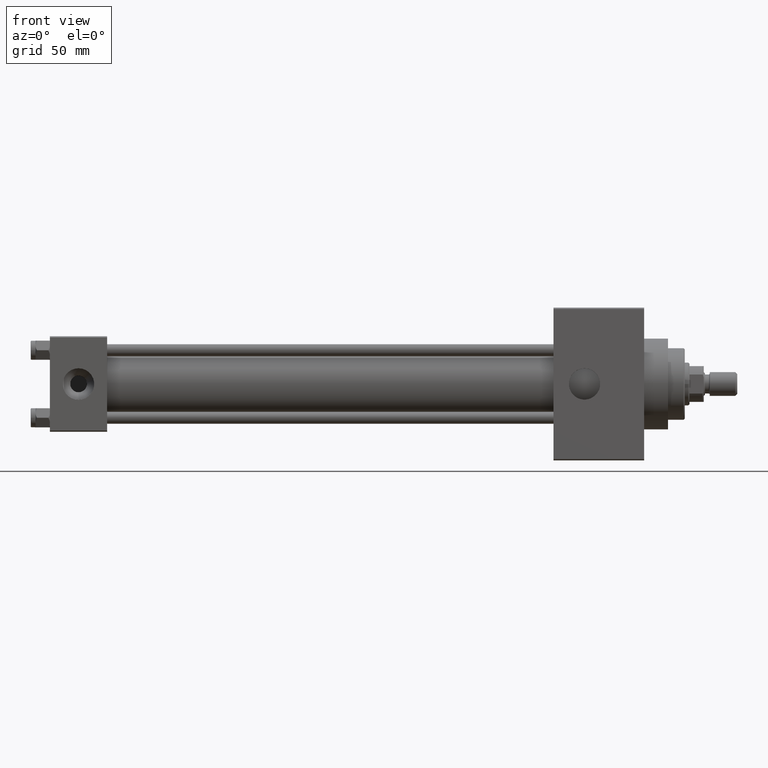
[diagram: clean part render]
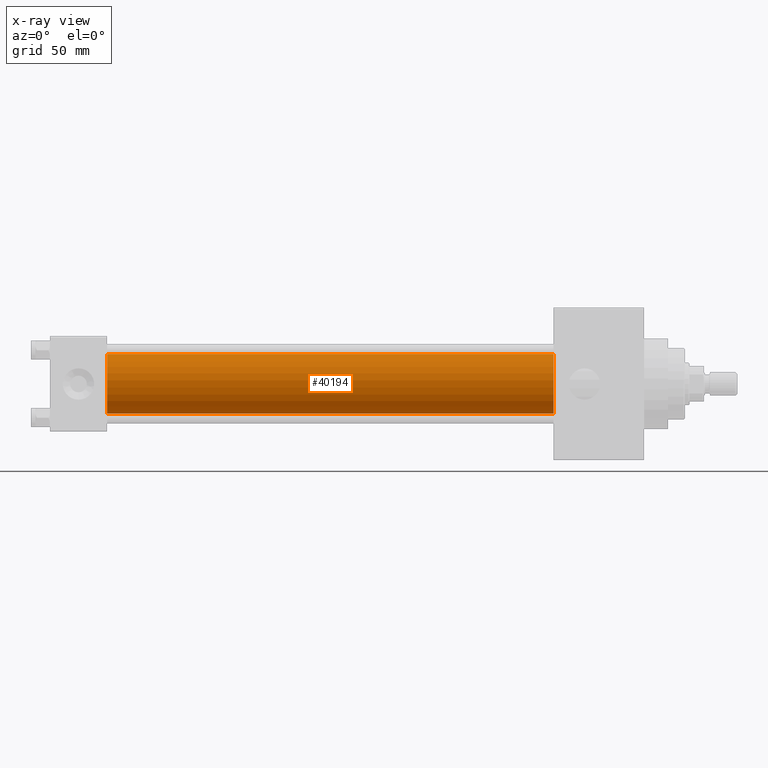
[diagram: x-ray — body ghosted, one internal face saturated and labeled with its STEP entity id]
A machine part, front view, then the same camera in x-ray: the body is ghosted and one INTERNAL B-rep face — a face not visible from any outside direction — is saturated and labeled: STEP entity #40194.
In plain terms, the highlighted cylindrical surface (edge-blend (fillet) strip) has radius 12.5 mm, axis along (-1, -0, -0).
Its self-contained STEP definition (entity closure, byte-faithful):
#3845 = ORIENTED_EDGE ( 'NONE', *, *, #4210, .F. ) ;
#3965 = CARTESIAN_POINT ( 'NONE',  ( 24.00000000000000000, -1.071276715031019515E-15, -12.49999999999999645 ) ) ;
#4210 = EDGE_CURVE ( 'NONE', #20424, #43289, #23801, .T. ) ;
#4579 = ORIENTED_EDGE ( 'NONE', *, *, #33164, .T. ) ;
#5488 = DIRECTION ( 'NONE',  ( 0.000000000000000000, 0.000000000000000000, -1.000000000000000000 ) ) ;
#6075 = CIRCLE ( 'NONE', #33199, 12.49999999999999645 ) ;
#6235 = CIRCLE ( 'NONE', #11849, 12.49999999999999645 ) ;
#10120 = DIRECTION ( 'NONE',  ( -1.000000000000000000, -0.000000000000000000, -0.000000000000000000 ) ) ;
#11655 = EDGE_CURVE ( 'NONE', #20424, #24477, #6235, .T. ) ;
#11849 = AXIS2_PLACEMENT_3D ( 'NONE', #13473, #31751, #5488 ) ;
#13184 = CARTESIAN_POINT ( 'NONE',  ( 24.00000000000000000, -2.602085213965210642E-15, 12.49999999999999645 ) ) ;
#13473 = CARTESIAN_POINT ( 'NONE',  ( 211.0000000000000000, -2.602085213965210642E-15, 0.000000000000000000 ) ) ;
#13838 = ORIENTED_EDGE ( 'NONE', *, *, #11655, .T. ) ;
#14621 = CYLINDRICAL_SURFACE ( 'NONE', #39519, 12.49999999999999645 ) ;
#18698 = VECTOR ( 'NONE', #44516, 1000.000000000000000 ) ;
#20424 = VERTEX_POINT ( 'NONE', #46043 ) ;
#23449 = CARTESIAN_POINT ( 'NONE',  ( 24.00000000000000000, -2.602085213965210642E-15, 0.000000000000000000 ) ) ;
#23697 = DIRECTION ( 'NONE',  ( 0.000000000000000000, 0.000000000000000000, -1.000000000000000000 ) ) ;
#23801 = LINE ( 'NONE', #39776, #44307 ) ;
#24477 = VERTEX_POINT ( 'NONE', #35783 ) ;
#24552 = LINE ( 'NONE', #32290, #18698 ) ;
#27367 = EDGE_LOOP ( 'NONE', ( #13838, #4579, #39853, #3845 ) ) ;
#29377 = FACE_OUTER_BOUND ( 'NONE', #27367, .T. ) ;
#31751 = DIRECTION ( 'NONE',  ( 1.000000000000000000, 0.000000000000000000, 0.000000000000000000 ) ) ;
#32290 = CARTESIAN_POINT ( 'NONE',  ( 211.0000000000000000, -1.071276715031019515E-15, -12.49999999999999645 ) ) ;
#33164 = EDGE_CURVE ( 'NONE', #24477, #38862, #24552, .T. ) ;
#33199 = AXIS2_PLACEMENT_3D ( 'NONE', #23449, #38694, #23697 ) ;
#35769 = DIRECTION ( 'NONE',  ( -1.000000000000000000, -0.000000000000000000, -0.000000000000000000 ) ) ;
#35783 = CARTESIAN_POINT ( 'NONE',  ( 211.0000000000000000, -1.071276715031019515E-15, -12.49999999999999645 ) ) ;
#36624 = CARTESIAN_POINT ( 'NONE',  ( 211.0000000000000000, -2.602085213965210642E-15, 0.000000000000000000 ) ) ;
#38694 = DIRECTION ( 'NONE',  ( 1.000000000000000000, 0.000000000000000000, 0.000000000000000000 ) ) ;
#38862 = VERTEX_POINT ( 'NONE', #3965 ) ;
#39519 = AXIS2_PLACEMENT_3D ( 'NONE', #36624, #10120, #45132 ) ;
#39776 = CARTESIAN_POINT ( 'NONE',  ( 211.0000000000000000, -2.602085213965210642E-15, 12.49999999999999645 ) ) ;
#39853 = ORIENTED_EDGE ( 'NONE', *, *, #42096, .F. ) ;
#40194 = ADVANCED_FACE ( 'NONE', ( #29377 ), #14621, .F. ) ;
#42096 = EDGE_CURVE ( 'NONE', #43289, #38862, #6075, .T. ) ;
#43289 = VERTEX_POINT ( 'NONE', #13184 ) ;
#44307 = VECTOR ( 'NONE', #35769, 1000.000000000000000 ) ;
#44516 = DIRECTION ( 'NONE',  ( -1.000000000000000000, -0.000000000000000000, -0.000000000000000000 ) ) ;
#45132 = DIRECTION ( 'NONE',  ( 0.000000000000000000, 0.000000000000000000, 1.000000000000000000 ) ) ;
#46043 = CARTESIAN_POINT ( 'NONE',  ( 211.0000000000000000, -2.602085213965210642E-15, 12.49999999999999645 ) ) ;